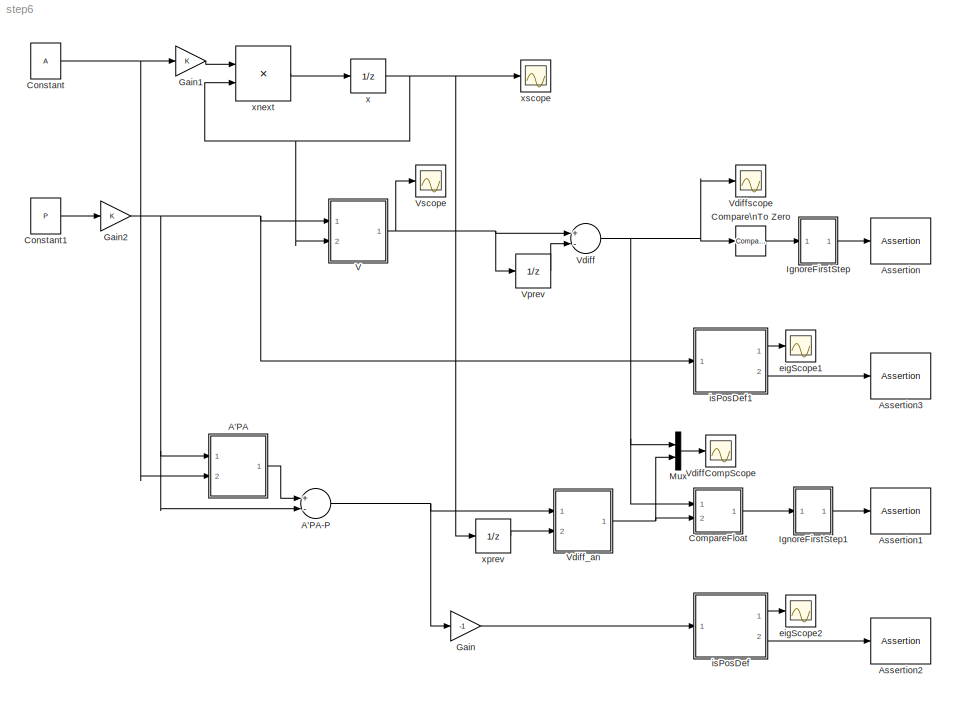
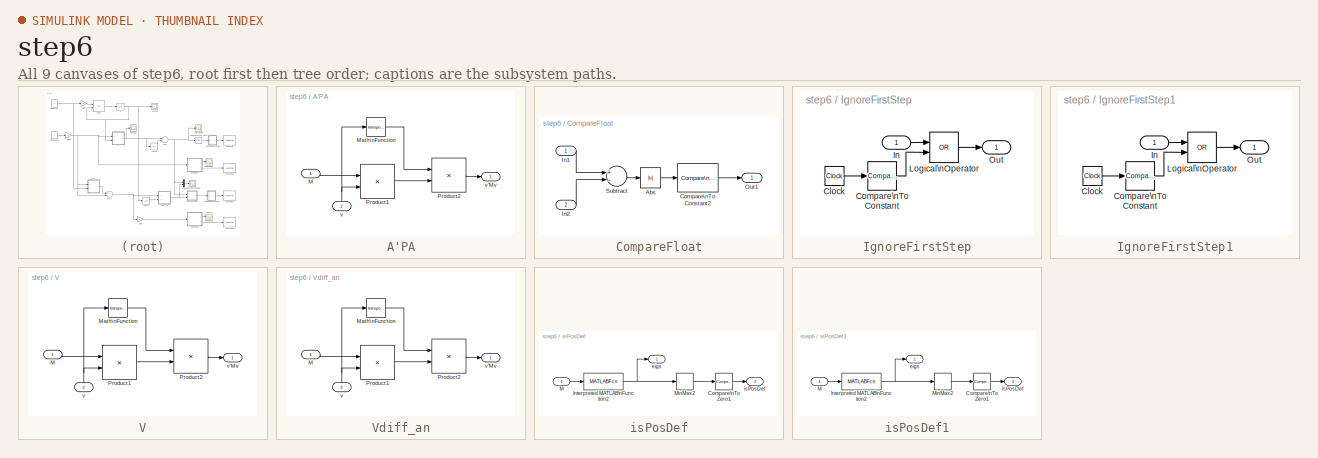
[diagram: thumbnail index - all 9 canvases of the model, root first then tree order]
MODEL step6
KIND model
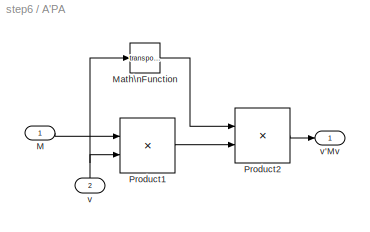
BLOCK [SubSystem] A'PA
  FunctionWithSeparateData = off
  MaskHideContents = off
  MinAlgLoopOccurrences = off
  Opaque = off
  Ports = [2, 1]
  PropExecContextOutsideSubsystem = off
  RTWSystemCode = Auto
  RequestExecContextInheritance = off
  SID = 43
BLOCK [Sum] A'PA-P
  InputSameDT = off
  Inputs = +-
  OutDataTypeStr = Inherit: Inherit via internal rule
  Ports = [2, 1]
  SID = 41
  SaturateOnIntegerOverflow = off
BLOCK [Inport] A'PA/M
  IconDisplay = Port number
  SID = 44
BLOCK [Math] A'PA/Math\nFunction
  Operator = transpose
  Ports = [1, 1]
  SID = 89
BLOCK [Product] A'PA/Product1
  InputSameDT = off
  Multiplication = Matrix(*)
  OutDataTypeStr = Inherit: Inherit via internal rule
  Ports = [2, 1]
  SID = 47
  SaturateOnIntegerOverflow = off
BLOCK [Product] A'PA/Product2
  InputSameDT = off
  Multiplication = Matrix(*)
  OutDataTypeStr = Inherit: Inherit via internal rule
  Ports = [2, 1]
  SID = 48
  SaturateOnIntegerOverflow = off
BLOCK [Inport] A'PA/v
  IconDisplay = Port number
  Port = 2
  SID = 45
BLOCK [Outport] A'PA/v'Mv
  IconDisplay = Port number
  SID = 49
BLOCK [Assertion] Assertion
  Enabled = off
  SID = 28
BLOCK [Assertion] Assertion1
  SID = 60
BLOCK [Assertion] Assertion2
  SID = 116
BLOCK [Assertion] Assertion3
  SID = 111
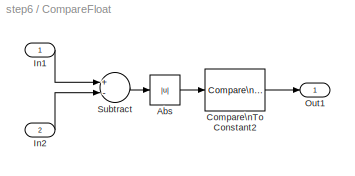
BLOCK [SubSystem] CompareFloat
  FunctionWithSeparateData = off
  MaskHideContents = off
  MinAlgLoopOccurrences = off
  Opaque = off
  Ports = [2, 1]
  PropExecContextOutsideSubsystem = off
  RTWSystemCode = Auto
  RequestExecContextInheritance = off
  SID = 72
BLOCK [Abs] CompareFloat/Abs
  SID = 70
  SaturateOnIntegerOverflow = off
BLOCK [Reference] CompareFloat/Compare\nTo Constant2  REF=simulink/Logic and Bit\nOperations/Compare\nTo Constant
  OutDataTypeStr = boolean
  Ports = [1, 1]
  SID = 71
  SourceBlock = simulink/Logic and Bit\nOperations/Compare\nTo Constant
  SourceType = Compare To Constant
  ZeroCross = on
  const = 1e-9
  relop = <=
BLOCK [Inport] CompareFloat/In1
  IconDisplay = Port number
  SID = 73
BLOCK [Inport] CompareFloat/In2
  IconDisplay = Port number
  Port = 2
  SID = 75
BLOCK [Outport] CompareFloat/Out1
  IconDisplay = Port number
  SID = 74
BLOCK [Sum] CompareFloat/Subtract
  InputSameDT = off
  Inputs = +-
  OutDataTypeStr = Inherit: Inherit via internal rule
  Ports = [2, 1]
  SID = 67
  SaturateOnIntegerOverflow = off
BLOCK [Reference] Compare\nTo Zero  REF=simulink/Logic and Bit\nOperations/Compare\nTo Zero
  OutDataTypeStr = boolean
  Ports = [1, 1]
  SID = 34
  SourceBlock = simulink/Logic and Bit\nOperations/Compare\nTo Zero
  SourceType = Compare To Zero
  ZeroCross = on
  relop = <
BLOCK [Constant] Constant
  SID = 2
  Value = A
BLOCK [Constant] Constant1
  SID = 6
  Value = P
BLOCK [Gain] Gain
  Gain = -1
  OutDataTypeStr = Inherit: Inherit via internal rule
  ParamDataTypeStr = Inherit: Inherit via internal rule
  SID = 121
  SaturateOnIntegerOverflow = off
BLOCK [Gain] Gain1
  OutDataTypeStr = Inherit: Inherit via internal rule
  ParamDataTypeStr = Inherit: Inherit via internal rule
  SID = 147
  SaturateOnIntegerOverflow = off
BLOCK [Gain] Gain2
  OutDataTypeStr = Inherit: Inherit via internal rule
  ParamDataTypeStr = Inherit: Inherit via internal rule
  SID = 148
  SaturateOnIntegerOverflow = off
BLOCK [SubSystem] IgnoreFirstStep
  FunctionWithSeparateData = off
  MaskHideContents = off
  MinAlgLoopOccurrences = off
  Opaque = off
  Ports = [1, 1]
  PropExecContextOutsideSubsystem = off
  RTWSystemCode = Auto
  RequestExecContextInheritance = off
  SID = 79
BLOCK [Clock] IgnoreFirstStep/Clock
  SID = 36
BLOCK [Reference] IgnoreFirstStep/Compare\nTo Constant  REF=simulink/Logic and Bit\nOperations/Compare\nTo Constant
  OutDataTypeStr = boolean
  Ports = [1, 1]
  SID = 37
  SourceBlock = simulink/Logic and Bit\nOperations/Compare\nTo Constant
  SourceType = Compare To Constant
  ZeroCross = on
  const = 1
  relop = <=
BLOCK [Inport] IgnoreFirstStep/In
  IconDisplay = Port number
  SID = 80
BLOCK [Logic] IgnoreFirstStep/Logical\nOperator
  AllPortsSameDT = off
  IconShape = distinctive
  Operator = OR
  OutDataTypeStr = boolean
  Ports = [2, 1]
  SID = 38
BLOCK [Outport] IgnoreFirstStep/Out
  IconDisplay = Port number
  SID = 81
BLOCK [SubSystem] IgnoreFirstStep1
  FunctionWithSeparateData = off
  MaskHideContents = off
  MinAlgLoopOccurrences = off
  Opaque = off
  Ports = [1, 1]
  PropExecContextOutsideSubsystem = off
  RTWSystemCode = Auto
  RequestExecContextInheritance = off
  SID = 82
BLOCK [Clock] IgnoreFirstStep1/Clock
  SID = 84
BLOCK [Reference] IgnoreFirstStep1/Compare\nTo Constant  REF=simulink/Logic and Bit\nOperations/Compare\nTo Constant
  OutDataTypeStr = boolean
  Ports = [1, 1]
  SID = 85
  SourceBlock = simulink/Logic and Bit\nOperations/Compare\nTo Constant
  SourceType = Compare To Constant
  ZeroCross = on
  const = 1
  relop = <=
BLOCK [Inport] IgnoreFirstStep1/In
  IconDisplay = Port number
  SID = 83
BLOCK [Logic] IgnoreFirstStep1/Logical\nOperator
  AllPortsSameDT = off
  IconShape = distinctive
  Operator = OR
  OutDataTypeStr = boolean
  Ports = [2, 1]
  SID = 86
BLOCK [Outport] IgnoreFirstStep1/Out
  IconDisplay = Port number
  SID = 87
BLOCK [Mux] Mux
  DisplayOption = bar
  Inputs = 2
  Ports = [2, 1]
  SID = 78
BLOCK [SubSystem] V
  FunctionWithSeparateData = off
  MaskHideContents = off
  MinAlgLoopOccurrences = off
  Opaque = off
  Ports = [2, 1]
  PropExecContextOutsideSubsystem = off
  RTWSystemCode = Auto
  RequestExecContextInheritance = off
  SID = 90
BLOCK [Inport] V/M
  IconDisplay = Port number
  SID = 91
BLOCK [Math] V/Math\nFunction
  Operator = transpose
  Ports = [1, 1]
  SID = 93
BLOCK [Product] V/Product1
  InputSameDT = off
  Multiplication = Matrix(*)
  OutDataTypeStr = Inherit: Inherit via internal rule
  Ports = [2, 1]
  SID = 94
  SaturateOnIntegerOverflow = off
BLOCK [Product] V/Product2
  InputSameDT = off
  Multiplication = Matrix(*)
  OutDataTypeStr = Inherit: Inherit via internal rule
  Ports = [2, 1]
  SID = 95
  SaturateOnIntegerOverflow = off
BLOCK [Inport] V/v
  IconDisplay = Port number
  Port = 2
  SID = 92
BLOCK [Outport] V/v'Mv
  IconDisplay = Port number
  SID = 96
BLOCK [Sum] Vdiff
  InputSameDT = off
  Inputs = +-
  OutDataTypeStr = Inherit: Inherit via internal rule
  Ports = [2, 1]
  SID = 33
  SaturateOnIntegerOverflow = off
BLOCK [Scope] VdiffCompScope
  DataFormat = StructureWithTime
  Floating = off
  NumInputPorts = 1
  Ports = [1]
  SID = 77
  SampleTime = 0
  SaveName = ScopeData3
  ShowLegends = off
  ZoomMode = yonly
BLOCK [SubSystem] Vdiff_an
  FunctionWithSeparateData = off
  MaskHideContents = off
  MinAlgLoopOccurrences = off
  Opaque = off
  Ports = [2, 1]
  PropExecContextOutsideSubsystem = off
  RTWSystemCode = Auto
  RequestExecContextInheritance = off
  SID = 97
BLOCK [Inport] Vdiff_an/M
  IconDisplay = Port number
  SID = 98
BLOCK [Math] Vdiff_an/Math\nFunction
  Operator = transpose
  Ports = [1, 1]
  SID = 100
BLOCK [Product] Vdiff_an/Product1
  InputSameDT = off
  Multiplication = Matrix(*)
  OutDataTypeStr = Inherit: Inherit via internal rule
  Ports = [2, 1]
  SID = 101
  SaturateOnIntegerOverflow = off
BLOCK [Product] Vdiff_an/Product2
  InputSameDT = off
  Multiplication = Matrix(*)
  OutDataTypeStr = Inherit: Inherit via internal rule
  Ports = [2, 1]
  SID = 102
  SaturateOnIntegerOverflow = off
BLOCK [Inport] Vdiff_an/v
  IconDisplay = Port number
  Port = 2
  SID = 99
BLOCK [Outport] Vdiff_an/v'Mv
  IconDisplay = Port number
  SID = 103
BLOCK [Scope] Vdiffscope
  DataFormat = StructureWithTime
  Floating = off
  NumInputPorts = 1
  Ports = [1]
  SID = 10
  SampleTime = 0
  SaveName = ScopeData1
  ShowLegends = off
BLOCK [UnitDelay] Vprev
  InputProcessing = Elements as channels (sample based)
  SID = 32
BLOCK [Scope] Vscope
  DataFormat = StructureWithTime
  Floating = off
  NumInputPorts = 1
  Ports = [1]
  SID = 30
  SampleTime = 0
  SaveName = ScopeData2
  ShowLegends = off
  ZoomMode = yonly
BLOCK [Scope] eigScope1
  DataFormat = StructureWithTime
  Floating = off
  NumInputPorts = 1
  Ports = [1]
  SID = 129
  SampleTime = 0
  SaveName = ScopeData5
  ShowLegends = off
BLOCK [Scope] eigScope2
  DataFormat = StructureWithTime
  Floating = off
  NumInputPorts = 1
  Ports = [1]
  SID = 120
  SampleTime = 0
  SaveName = ScopeData4
  ShowLegends = off
BLOCK [SubSystem] isPosDef
  FunctionWithSeparateData = off
  MaskHideContents = off
  MinAlgLoopOccurrences = off
  Opaque = off
  Ports = [1, 2]
  PropExecContextOutsideSubsystem = off
  RTWSystemCode = Auto
  RequestExecContextInheritance = off
  SID = 125
BLOCK [Reference] isPosDef/Compare\nTo Zero1  REF=simulink/Logic and Bit\nOperations/Compare\nTo Zero
  OutDataTypeStr = boolean
  Ports = [1, 1]
  SID = 117
  SourceBlock = simulink/Logic and Bit\nOperations/Compare\nTo Zero
  SourceType = Compare To Zero
  ZeroCross = on
  relop = >
BLOCK [MATLABFcn] isPosDef/Interpreted MATLAB\nFunction2
  MATLABFcn = eig
  Ports = [1, 1]
  SID = 118
BLOCK [Inport] isPosDef/M
  IconDisplay = Port number
  SID = 128
BLOCK [MinMax] isPosDef/MinMax2
  InputSameDT = off
  Ports = [1, 1]
  SID = 119
  SaturateOnIntegerOverflow = off
BLOCK [Outport] isPosDef/eigs
  IconDisplay = Port number
  SID = 126
BLOCK [Outport] isPosDef/isPosDef
  IconDisplay = Port number
  Port = 2
  SID = 127
BLOCK [SubSystem] isPosDef1
  FunctionWithSeparateData = off
  MaskHideContents = off
  MinAlgLoopOccurrences = off
  Opaque = off
  Ports = [1, 2]
  PropExecContextOutsideSubsystem = off
  RTWSystemCode = Auto
  RequestExecContextInheritance = off
  SID = 130
BLOCK [Reference] isPosDef1/Compare\nTo Zero1  REF=simulink/Logic and Bit\nOperations/Compare\nTo Zero
  OutDataTypeStr = boolean
  Ports = [1, 1]
  SID = 132
  SourceBlock = simulink/Logic and Bit\nOperations/Compare\nTo Zero
  SourceType = Compare To Zero
  ZeroCross = on
  relop = >
BLOCK [MATLABFcn] isPosDef1/Interpreted MATLAB\nFunction2
  MATLABFcn = eig
  Ports = [1, 1]
  SID = 133
BLOCK [Inport] isPosDef1/M
  IconDisplay = Port number
  SID = 131
BLOCK [MinMax] isPosDef1/MinMax2
  InputSameDT = off
  Ports = [1, 1]
  SID = 134
  SaturateOnIntegerOverflow = off
BLOCK [Outport] isPosDef1/eigs
  IconDisplay = Port number
  SID = 135
BLOCK [Outport] isPosDef1/isPosDef
  IconDisplay = Port number
  Port = 2
  SID = 136
BLOCK [UnitDelay] x
  InitialCondition = x0
  InputProcessing = Elements as channels (sample based)
  SID = 1
BLOCK [Product] xnext
  InputSameDT = off
  Multiplication = Matrix(*)
  OutDataTypeStr = Inherit: Inherit via internal rule
  Ports = [2, 1]
  SID = 3
  SaturateOnIntegerOverflow = off
BLOCK [UnitDelay] xprev
  InitialCondition = x0
  InputProcessing = Elements as channels (sample based)
  SID = 76
BLOCK [Scope] xscope
  DataFormat = StructureWithTime
  Floating = off
  NumInputPorts = 1
  Ports = [1]
  SID = 4
  SampleTime = 0
  ShowLegends = off
NET A'PA-P:1 -> Gain:1, Vdiff_an:1
LINE A'PA/M:1 -> A'PA/Product1:1
LINE A'PA/Math\nFunction:1 -> A'PA/Product2:1
LINE A'PA/Product1:1 -> A'PA/Product2:2
LINE A'PA/Product2:1 -> A'PA/v'Mv:1
NET A'PA/v:1 -> A'PA/Math\nFunction:1, A'PA/Product1:2
LINE A'PA:1 -> A'PA-P:1
LINE CompareFloat/Abs:1 -> CompareFloat/Compare\nTo Constant2:1
LINE CompareFloat/Compare\nTo Constant2:1 -> CompareFloat/Out1:1
LINE CompareFloat/In1:1 -> CompareFloat/Subtract:1
LINE CompareFloat/In2:1 -> CompareFloat/Subtract:2
LINE CompareFloat/Subtract:1 -> CompareFloat/Abs:1
LINE CompareFloat:1 -> IgnoreFirstStep1:1
LINE Compare\nTo Zero:1 -> IgnoreFirstStep:1
LINE Constant1:1 -> Gain2:1
NET Constant:1 -> A'PA:2, Gain1:1
LINE Gain1:1 -> xnext:1
NET Gain2:1 -> A'PA-P:2, A'PA:1, V:1, isPosDef1:1
LINE Gain:1 -> isPosDef:1
LINE IgnoreFirstStep/Clock:1 -> IgnoreFirstStep/Compare\nTo Constant:1
LINE IgnoreFirstStep/Compare\nTo Constant:1 -> IgnoreFirstStep/Logical\nOperator:2
LINE IgnoreFirstStep/In:1 -> IgnoreFirstStep/Logical\nOperator:1
LINE IgnoreFirstStep/Logical\nOperator:1 -> IgnoreFirstStep/Out:1
LINE IgnoreFirstStep1/Clock:1 -> IgnoreFirstStep1/Compare\nTo Constant:1
LINE IgnoreFirstStep1/Compare\nTo Constant:1 -> IgnoreFirstStep1/Logical\nOperator:2
LINE IgnoreFirstStep1/In:1 -> IgnoreFirstStep1/Logical\nOperator:1
LINE IgnoreFirstStep1/Logical\nOperator:1 -> IgnoreFirstStep1/Out:1
LINE IgnoreFirstStep1:1 -> Assertion1:1
LINE IgnoreFirstStep:1 -> Assertion:1
LINE Mux:1 -> VdiffCompScope:1
LINE V/M:1 -> V/Product1:1
LINE V/Math\nFunction:1 -> V/Product2:1
LINE V/Product1:1 -> V/Product2:2
LINE V/Product2:1 -> V/v'Mv:1
NET V/v:1 -> V/Math\nFunction:1, V/Product1:2
NET V:1 -> Vdiff:1, Vprev:1, Vscope:1
NET Vdiff:1 -> CompareFloat:1, Compare\nTo Zero:1, Mux:1, Vdiffscope:1
LINE Vdiff_an/M:1 -> Vdiff_an/Product1:1
LINE Vdiff_an/Math\nFunction:1 -> Vdiff_an/Product2:1
LINE Vdiff_an/Product1:1 -> Vdiff_an/Product2:2
LINE Vdiff_an/Product2:1 -> Vdiff_an/v'Mv:1
NET Vdiff_an/v:1 -> Vdiff_an/Math\nFunction:1, Vdiff_an/Product1:2
NET Vdiff_an:1 -> CompareFloat:2, Mux:2
LINE Vprev:1 -> Vdiff:2
LINE isPosDef/Compare\nTo Zero1:1 -> isPosDef/isPosDef:1
NET isPosDef/Interpreted MATLAB\nFunction2:1 -> isPosDef/MinMax2:1, isPosDef/eigs:1
LINE isPosDef/M:1 -> isPosDef/Interpreted MATLAB\nFunction2:1
LINE isPosDef/MinMax2:1 -> isPosDef/Compare\nTo Zero1:1
LINE isPosDef1/Compare\nTo Zero1:1 -> isPosDef1/isPosDef:1
NET isPosDef1/Interpreted MATLAB\nFunction2:1 -> isPosDef1/MinMax2:1, isPosDef1/eigs:1
LINE isPosDef1/M:1 -> isPosDef1/Interpreted MATLAB\nFunction2:1
LINE isPosDef1/MinMax2:1 -> isPosDef1/Compare\nTo Zero1:1
LINE isPosDef1:1 -> eigScope1:1
LINE isPosDef1:2 -> Assertion3:1
LINE isPosDef:1 -> eigScope2:1
LINE isPosDef:2 -> Assertion2:1
NET x:1 -> V:2, xnext:2, xprev:1, xscope:1
LINE xnext:1 -> x:1
LINE xprev:1 -> Vdiff_an:2
note: NET lines group one-source signal fan-out (src -> all destinations, sorted); 1:1 wires keep LINE
